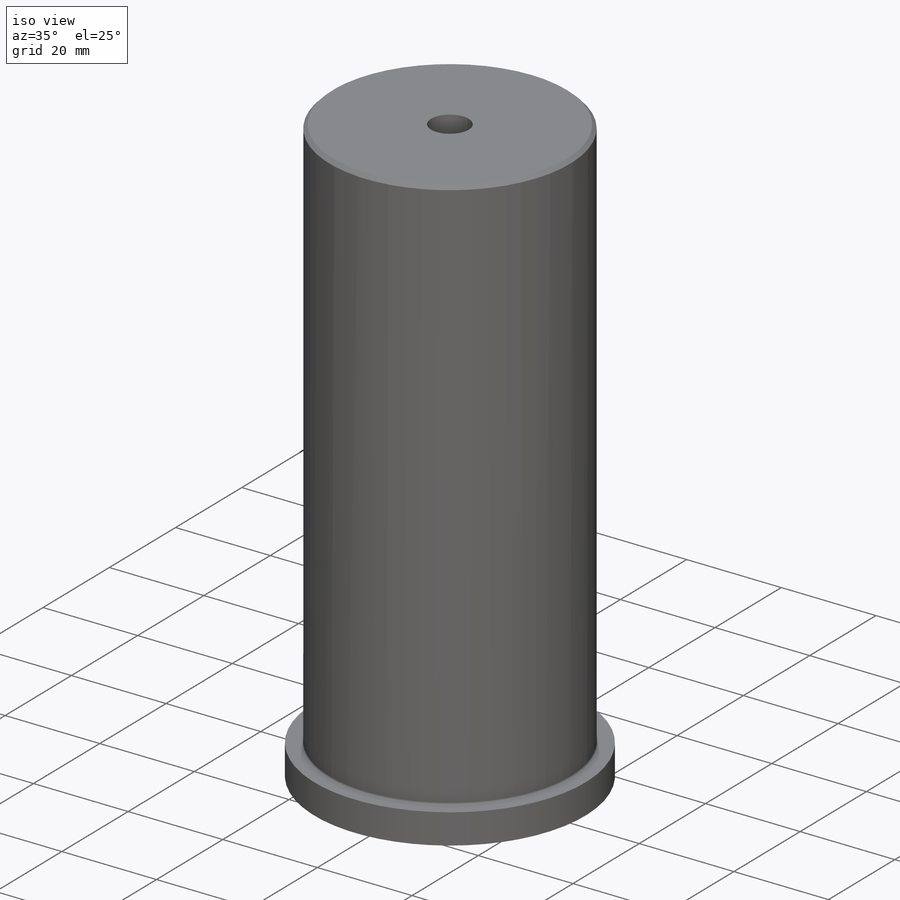
[diagram: iso view]
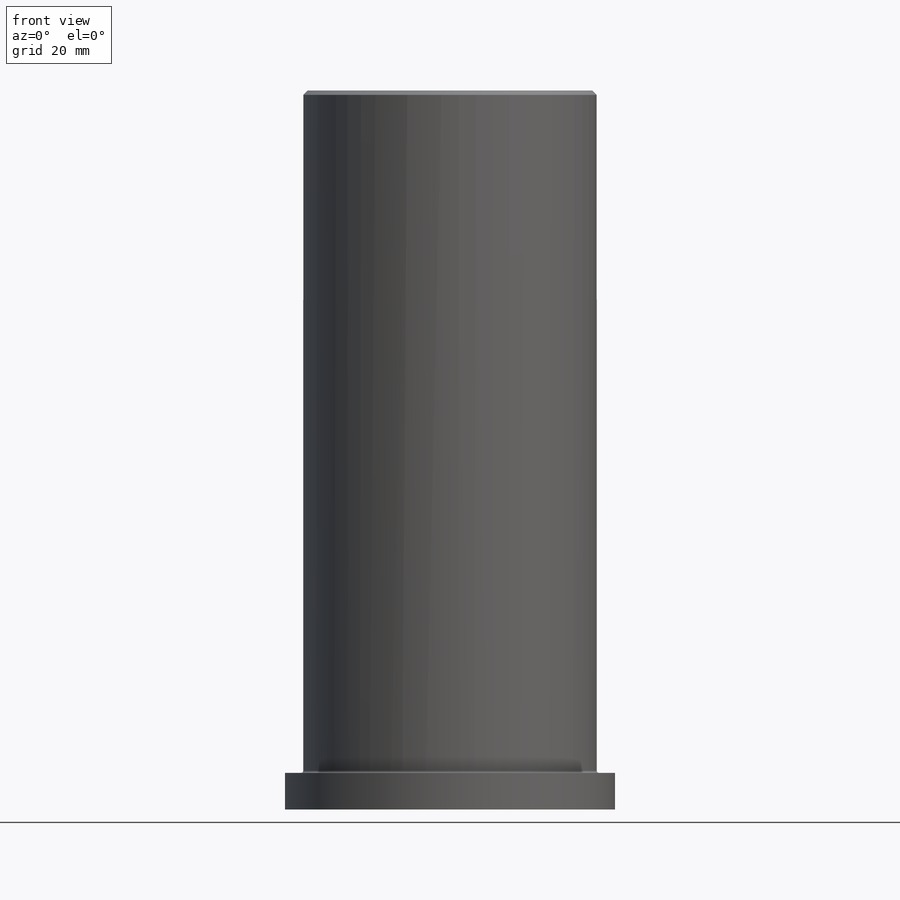
[diagram: front view]
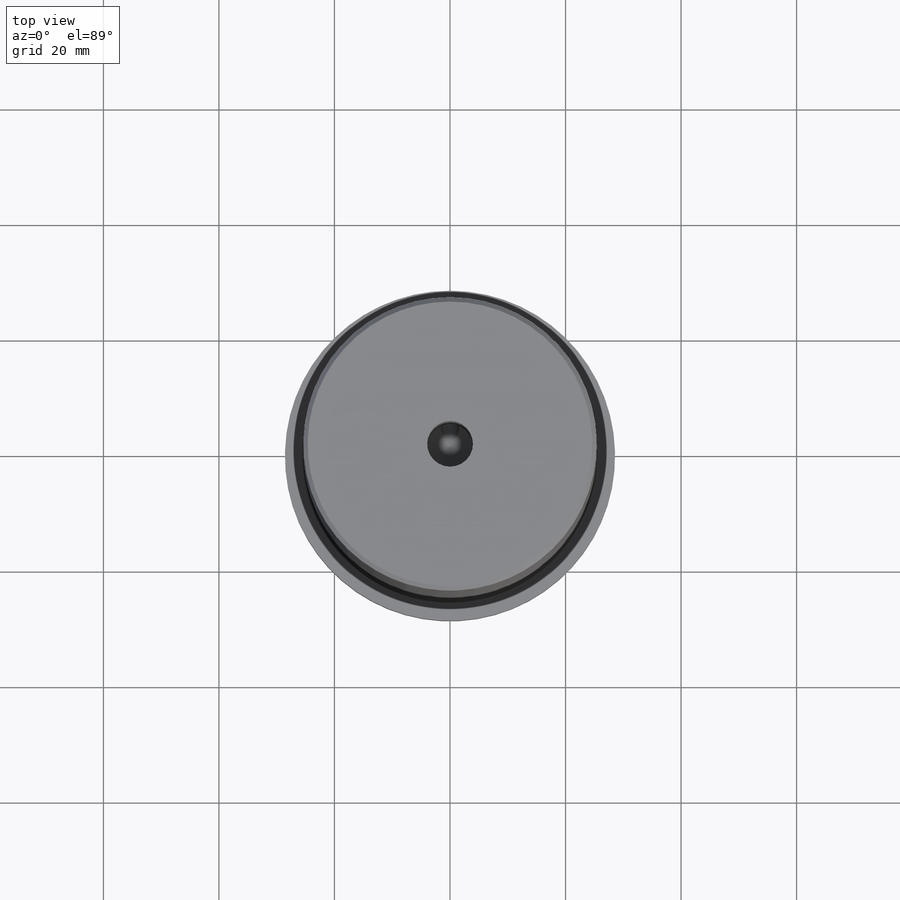
[diagram: top view]
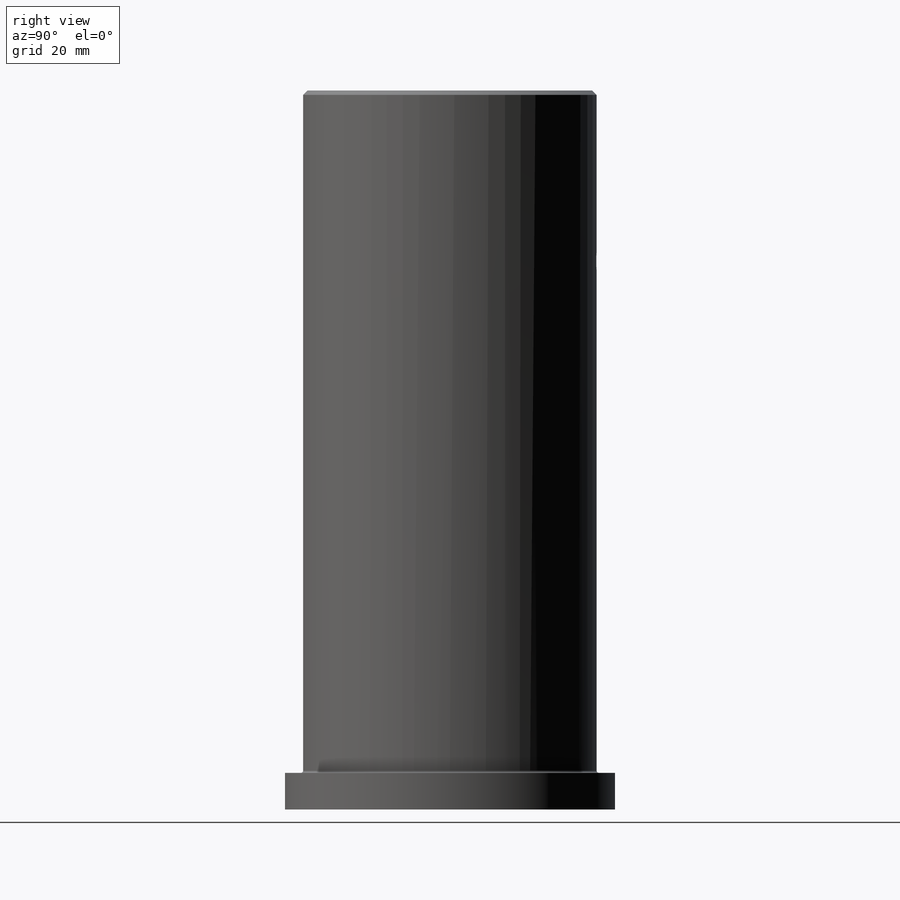
[diagram: right view]
SOLIDWORKS PART (.sldprt)
format: sldprt  version: not decoded by parser v0  size: 232,448 bytes
history: native  units: mm
features: sketch x5, plane x3, material x1, revolve x1, hole x1, thread x1, chamfer x1, fillet x1, cut_extrude x1 + 1 further entry (+10 scaffold rows collapsed)
feature tree (26):
  scaffold x10  (default folders/planes/origin — collapsed)
  material  "304 SSTL"
  plane  "XY"
  plane  "XZ"
  plane  "YZ"
  "Origin"  ID=-1
  sketch  "Sketch1"  dims[c1.D1=50.8mm c1.D2=57.15mm c1.D3=113.03mm c1.D4=6.35mm c2.D3=118.11mm]
  revolve  "Revolve1"  Angle=360deg
  sketch  "Sketch2"  dims[D1=8.4328mm]
  hole  "3/8-16 Tapped Hole1"  Diameter=7.9375mm Depth=29.5402mm
  sketch  "3DSketch1"
  sketch  "Sketch3"  dims[hole-wizard template sketch: 47 standard entries collapsed; hole parameters kept: c15.Tap Drill Depth=29.5402mm c15.D3=~14.816244mm c15.Drill Angle=118.0deg]
  thread  "Cosmetic Thread1"  Diameter=21.59mm  [1 undecoded]
  chamfer  "Chamfer1"  Distance=0.762mm Angle=45deg
  fillet  "Fillet1"  Radius=0.381mm
  sketch  "Sketch4"  dims[D1=3.175mm]
  cut_extrude  "Cut-Extrude1"  Depth=27.94mm
decode coverage: 10 of 11 modeling features carry decoded parameters; 1 rows unclassified (native names shown)
note: ~ marks probable driven/reference dimensions
note: 1 parameter value undecoded
note: suppression state not decoded; provenance and decode notes live in map.json
